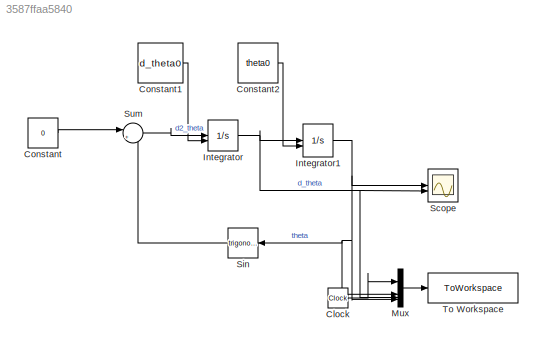
MODEL slx_3587ffaa5840
KIND model
CONFIG AbsTol = auto
CONFIG EnableMultiTasking = off
CONFIG FixedStep = auto
CONFIG MaxStep = auto
CONFIG MinStep = auto
CONFIG RelTol = 1e-3
CONFIG SampleTimeConstraint = Unconstrained
CONFIG SolverName = VariableStepAuto
CONFIG StartTime = 0.0
CONFIG StopTime = stoptime
BLOCK [Clock] Clock
  Decimation = 1
BLOCK [Constant] Constant
  Value = 0
BLOCK [Constant] Constant1
  Value = d_theta0
BLOCK [Constant] Constant2
  Value = theta0
BLOCK [Integrator] Integrator
  InitialConditionSource = external
BLOCK [Integrator] Integrator1
  InitialCondition = theta0
  InitialConditionSource = external
BLOCK [Mux] Mux
  DisplayOption = bar
BLOCK [Scope] Scope
  Floating = off
  NumInputPorts = 2
  ScopeSpecificationString = Simulink.scopes.TimeScopeBlockCfg('CurrentConfiguration', extmgr.ConfigurationSet(extmgr.Configuration('Core','General UI',true),extmgr.Configuration('Core','Source UI',true),extmgr.Configuration('Sources','WiredSimulink',true),extmgr.Configuration('Visuals','Time Domain',true,'SerializedDisplays',{struct('MinYLimReal','-1.96087','MaxYLimReal','1.96232','YLabelReal','','MinYLimMag','0.00000','MaxY...<+1369ch>
BLOCK [Trigonometry] Sin
  NameLocation = top
BLOCK [Sum] Sum
  Inputs = |+-
BLOCK [ToWorkspace] To Workspace
  FixptAsFi = on
  MaxDataPoints = inf
  SampleTime = -1
  VariableName = simout
LINE Clock:1 -> Mux:1
LINE Constant1:1 -> Integrator:2
LINE Constant2:1 -> Integrator1:2
LINE Constant:1 -> Sum:1
NET Integrator1:1 -> Mux:2, Mux:4, Scope:1, Sin:1
NET Integrator:1 -> Integrator1:1, Mux:3, Scope:2
LINE Mux:1 -> To Workspace:1
LINE Sin:1 -> Sum:2
LINE Sum:1 -> Integrator:1
note: NET lines group one-source signal fan-out (src -> all destinations, sorted); 1:1 wires keep LINE
